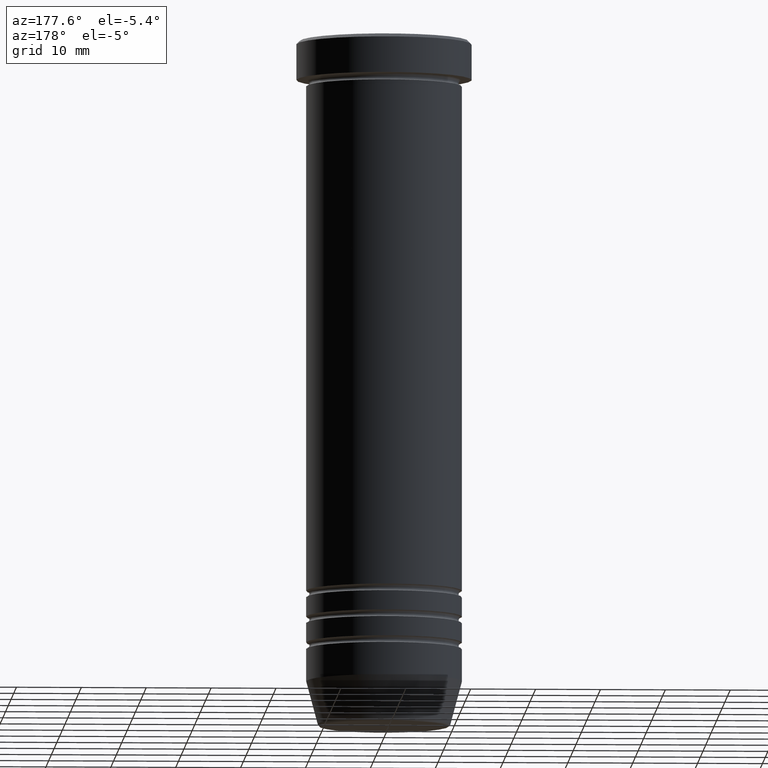
[diagram: clean part render]
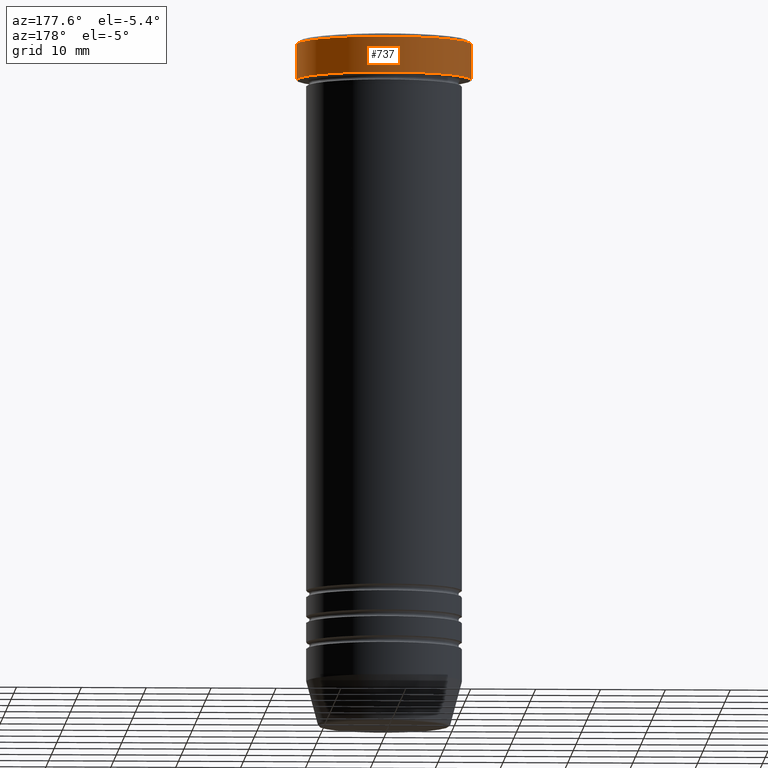
[diagram: same view with one face highlighted and labeled with its STEP entity id]
A machine part, auxiliary view. The second image highlights one B-rep face of the part: STEP entity #737.
In plain terms, the highlighted cylindrical surface (partial cylindrical patch) has radius 13.5 mm, axis along (-0, -0, 1).
Its self-contained STEP definition (entity closure, byte-faithful):
#9 = LINE ( 'NONE', #958, #1008 ) ;
#46 = CARTESIAN_POINT ( 'NONE',  ( 0.000000000000000000, 0.000000000000000000, -0.5000000000000056621 ) ) ;
#68 = DIRECTION ( 'NONE',  ( -0.000000000000000000, -0.000000000000000000, 1.000000000000000000 ) ) ;
#123 = CIRCLE ( 'NONE', #638, 13.50000000000000000 ) ;
#137 = VERTEX_POINT ( 'NONE', #165 ) ;
#146 = FACE_OUTER_BOUND ( 'NONE', #206, .T. ) ;
#165 = CARTESIAN_POINT ( 'NONE',  ( 13.50000000000000000, 0.000000000000000000, -6.000000000000000000 ) ) ;
#173 = CIRCLE ( 'NONE', #526, 13.50000000000000000 ) ;
#206 = EDGE_LOOP ( 'NONE', ( #418, #1081, #267, #1103 ) ) ;
#243 = EDGE_CURVE ( 'NONE', #137, #298, #173, .T. ) ;
#248 = AXIS2_PLACEMENT_3D ( 'NONE', #855, #68, #598 ) ;
#267 = ORIENTED_EDGE ( 'NONE', *, *, #1011, .T. ) ;
#298 = VERTEX_POINT ( 'NONE', #440 ) ;
#311 = EDGE_CURVE ( 'NONE', #298, #1014, #443, .T. ) ;
#321 = CYLINDRICAL_SURFACE ( 'NONE', #248, 13.50000000000000000 ) ;
#351 = DIRECTION ( 'NONE',  ( -0.000000000000000000, -0.000000000000000000, 1.000000000000000000 ) ) ;
#418 = ORIENTED_EDGE ( 'NONE', *, *, #243, .T. ) ;
#440 = CARTESIAN_POINT ( 'NONE',  ( -13.50000000000000000, 1.653273178848926867E-15, -6.000000000000000000 ) ) ;
#443 = LINE ( 'NONE', #796, #450 ) ;
#450 = VECTOR ( 'NONE', #351, 1000.000000000000000 ) ;
#526 = AXIS2_PLACEMENT_3D ( 'NONE', #536, #622, #973 ) ;
#536 = CARTESIAN_POINT ( 'NONE',  ( 0.000000000000000000, 0.000000000000000000, -6.000000000000000000 ) ) ;
#554 = DIRECTION ( 'NONE',  ( 1.000000000000000000, 0.000000000000000000, 0.000000000000000000 ) ) ;
#598 = DIRECTION ( 'NONE',  ( 1.000000000000000000, 0.000000000000000000, 0.000000000000000000 ) ) ;
#622 = DIRECTION ( 'NONE',  ( -0.000000000000000000, -0.000000000000000000, 1.000000000000000000 ) ) ;
#638 = AXIS2_PLACEMENT_3D ( 'NONE', #46, #652, #554 ) ;
#652 = DIRECTION ( 'NONE',  ( 0.000000000000000000, 0.000000000000000000, -1.000000000000000000 ) ) ;
#737 = ADVANCED_FACE ( 'NONE', ( #146 ), #321, .T. ) ;
#796 = CARTESIAN_POINT ( 'NONE',  ( -13.50000000000000000, 1.653273178848926867E-15, 0.000000000000000000 ) ) ;
#840 = EDGE_CURVE ( 'NONE', #137, #1089, #9, .T. ) ;
#855 = CARTESIAN_POINT ( 'NONE',  ( 0.000000000000000000, 0.000000000000000000, 0.000000000000000000 ) ) ;
#875 = DIRECTION ( 'NONE',  ( -0.000000000000000000, -0.000000000000000000, 1.000000000000000000 ) ) ;
#958 = CARTESIAN_POINT ( 'NONE',  ( 13.50000000000000000, 0.000000000000000000, 0.000000000000000000 ) ) ;
#973 = DIRECTION ( 'NONE',  ( 1.000000000000000000, 0.000000000000000000, 0.000000000000000000 ) ) ;
#986 = CARTESIAN_POINT ( 'NONE',  ( -13.50000000000000000, 1.653273178848926867E-15, -0.5000000000000056621 ) ) ;
#1008 = VECTOR ( 'NONE', #875, 1000.000000000000000 ) ;
#1011 = EDGE_CURVE ( 'NONE', #1014, #1089, #123, .T. ) ;
#1014 = VERTEX_POINT ( 'NONE', #986 ) ;
#1026 = CARTESIAN_POINT ( 'NONE',  ( 13.50000000000000000, 0.000000000000000000, -0.5000000000000056621 ) ) ;
#1081 = ORIENTED_EDGE ( 'NONE', *, *, #311, .T. ) ;
#1089 = VERTEX_POINT ( 'NONE', #1026 ) ;
#1103 = ORIENTED_EDGE ( 'NONE', *, *, #840, .F. ) ;